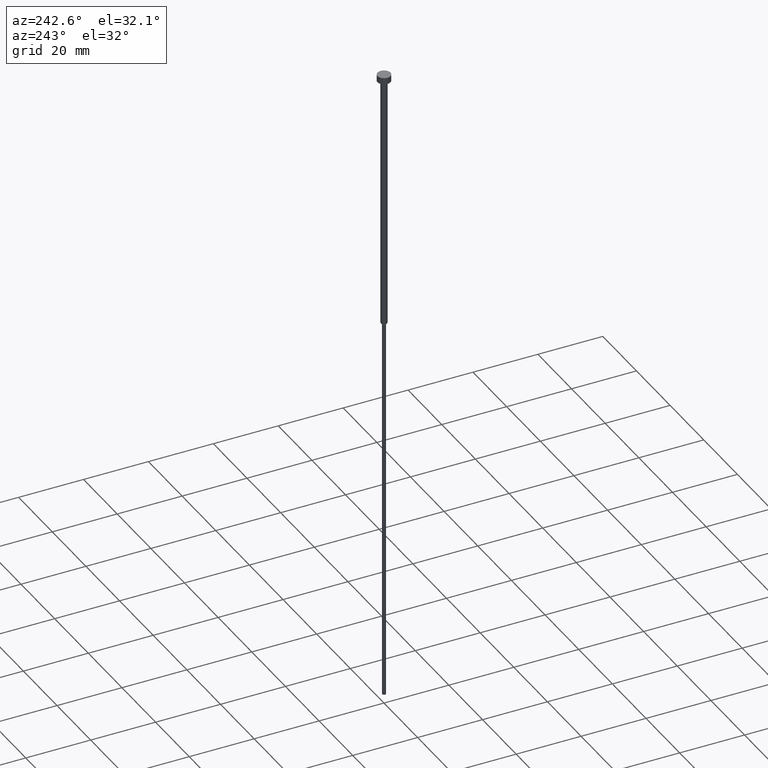
[diagram: clean part render]
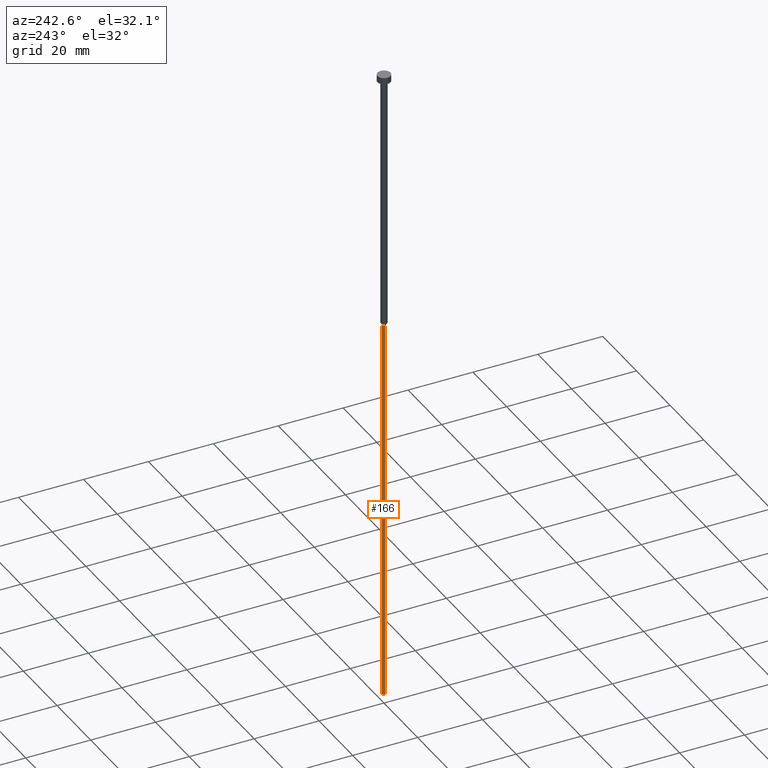
[diagram: same view with one face highlighted and labeled with its STEP entity id]
A machine part, auxiliary view. The second image highlights one B-rep face of the part: STEP entity #166.
In plain terms, the highlighted cylindrical surface (edge-blend (fillet) strip) has radius 0.55 mm, axis along (-0, -0, 1).
Its self-contained STEP definition (entity closure, byte-faithful):
#12 = CARTESIAN_POINT ( 'NONE',  ( 0.5500000000000000444, 0.000000000000000000, -80.77942286340599765 ) ) ;
#16 = CARTESIAN_POINT ( 'NONE',  ( 0.000000000000000000, 0.000000000000000000, -200.0000000000000000 ) ) ;
#27 = FACE_OUTER_BOUND ( 'NONE', #31, .T. ) ;
#31 = EDGE_LOOP ( 'NONE', ( #47, #154, #289, #40 ) ) ;
#33 = VERTEX_POINT ( 'NONE', #331 ) ;
#40 = ORIENTED_EDGE ( 'NONE', *, *, #138, .F. ) ;
#47 = ORIENTED_EDGE ( 'NONE', *, *, #306, .T. ) ;
#48 = AXIS2_PLACEMENT_3D ( 'NONE', #16, #212, #187 ) ;
#65 = VECTOR ( 'NONE', #79, 1000.000000000000000 ) ;
#78 = VERTEX_POINT ( 'NONE', #12 ) ;
#79 = DIRECTION ( 'NONE',  ( -0.000000000000000000, -0.000000000000000000, 1.000000000000000000 ) ) ;
#80 = CARTESIAN_POINT ( 'NONE',  ( 0.5499999999999999334, 0.000000000000000000, 0.000000000000000000 ) ) ;
#81 = CIRCLE ( 'NONE', #149, 0.5500000000000000444 ) ;
#83 = CARTESIAN_POINT ( 'NONE',  ( 0.000000000000000000, 0.000000000000000000, 0.000000000000000000 ) ) ;
#109 = VERTEX_POINT ( 'NONE', #276 ) ;
#126 = CARTESIAN_POINT ( 'NONE',  ( 0.5499999999999999334, 0.000000000000000000, -200.0000000000000000 ) ) ;
#133 = DIRECTION ( 'NONE',  ( -0.000000000000000000, -0.000000000000000000, 1.000000000000000000 ) ) ;
#135 = CARTESIAN_POINT ( 'NONE',  ( -0.5499999999999999334, 6.735557395310441284E-17, 0.000000000000000000 ) ) ;
#138 = EDGE_CURVE ( 'NONE', #309, #78, #193, .T. ) ;
#149 = AXIS2_PLACEMENT_3D ( 'NONE', #171, #197, #348 ) ;
#154 = ORIENTED_EDGE ( 'NONE', *, *, #349, .T. ) ;
#158 = EDGE_CURVE ( 'NONE', #78, #109, #81, .T. ) ;
#166 = ADVANCED_FACE ( 'NONE', ( #27 ), #221, .T. ) ;
#171 = CARTESIAN_POINT ( 'NONE',  ( 0.000000000000000000, 0.000000000000000000, -80.77942286340599765 ) ) ;
#187 = DIRECTION ( 'NONE',  ( 1.000000000000000000, 0.000000000000000000, 0.000000000000000000 ) ) ;
#193 = LINE ( 'NONE', #80, #292 ) ;
#195 = LINE ( 'NONE', #135, #65 ) ;
#197 = DIRECTION ( 'NONE',  ( -0.000000000000000000, -0.000000000000000000, 1.000000000000000000 ) ) ;
#206 = CIRCLE ( 'NONE', #48, 0.5499999999999999334 ) ;
#212 = DIRECTION ( 'NONE',  ( -0.000000000000000000, -0.000000000000000000, 1.000000000000000000 ) ) ;
#221 = CYLINDRICAL_SURFACE ( 'NONE', #282, 0.5499999999999999334 ) ;
#276 = CARTESIAN_POINT ( 'NONE',  ( -0.5500000000000000444, 6.735557395310442516E-17, -80.77942286340599765 ) ) ;
#282 = AXIS2_PLACEMENT_3D ( 'NONE', #83, #320, #290 ) ;
#289 = ORIENTED_EDGE ( 'NONE', *, *, #158, .F. ) ;
#290 = DIRECTION ( 'NONE',  ( 1.000000000000000000, 0.000000000000000000, 0.000000000000000000 ) ) ;
#292 = VECTOR ( 'NONE', #133, 1000.000000000000000 ) ;
#306 = EDGE_CURVE ( 'NONE', #309, #33, #206, .T. ) ;
#309 = VERTEX_POINT ( 'NONE', #126 ) ;
#320 = DIRECTION ( 'NONE',  ( -0.000000000000000000, -0.000000000000000000, 1.000000000000000000 ) ) ;
#331 = CARTESIAN_POINT ( 'NONE',  ( -0.5499999999999999334, 6.735557395310441284E-17, -200.0000000000000000 ) ) ;
#348 = DIRECTION ( 'NONE',  ( 1.000000000000000000, 0.000000000000000000, 0.000000000000000000 ) ) ;
#349 = EDGE_CURVE ( 'NONE', #33, #109, #195, .T. ) ;